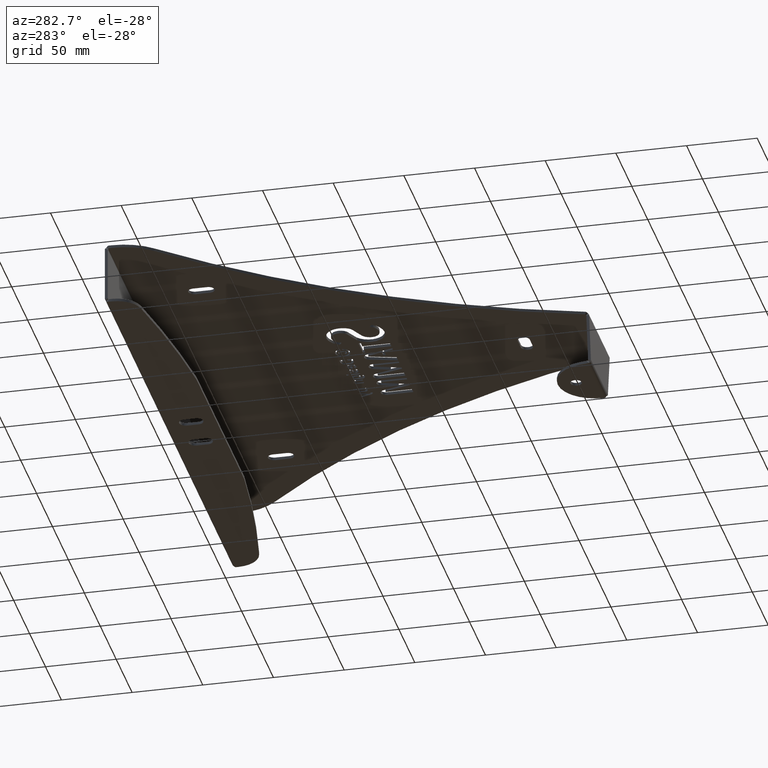
[diagram: clean part render]
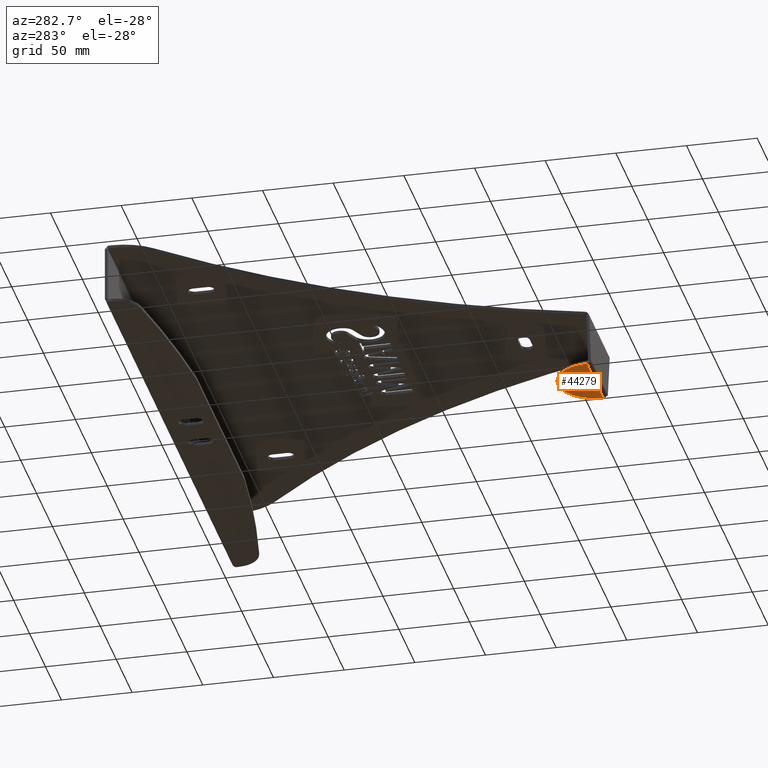
[diagram: same view with one face highlighted and labeled with its STEP entity id]
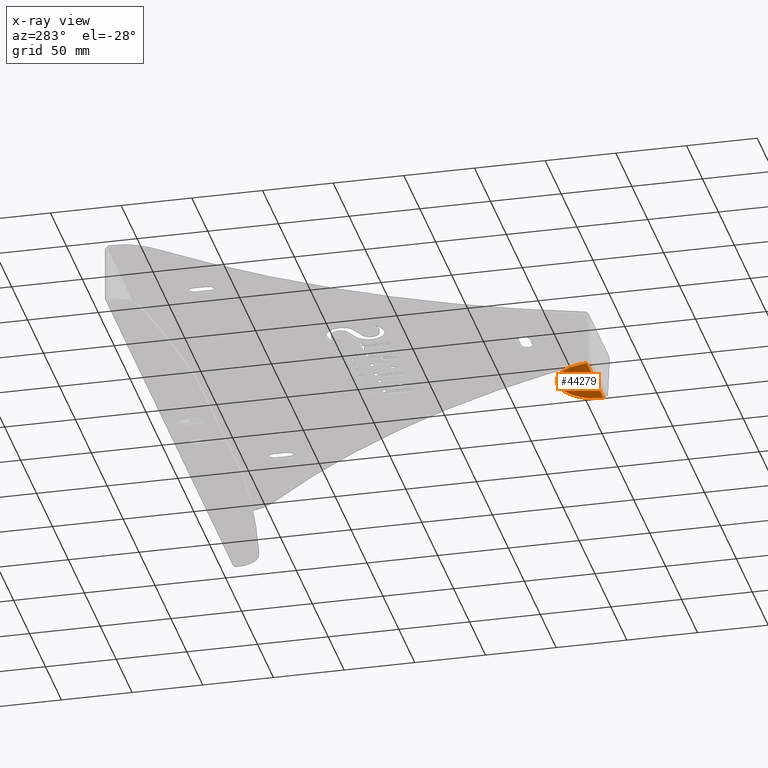
[diagram: x-ray of the same camera — body ghosted, the highlighted face saturated]
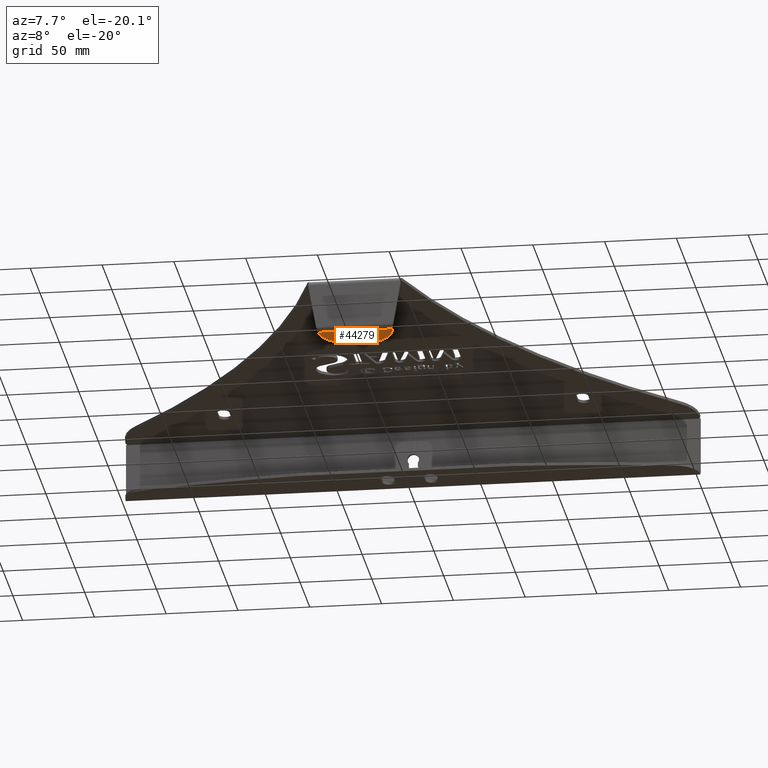
[diagram: same view with one face highlighted and labeled with its STEP entity id]
A machine part, auxiliary view. The second image highlights one B-rep face of the part: STEP entity #44279.
The next image is the same camera in x-ray: the body ghosted, the highlighted face saturated — about 0% of this face is hidden behind the body in this view.
A second angle (auxiliary view) of the same face is appended — the face is thin or edge-on in the first view.
In plain terms, the highlighted planar face has unit normal (-0, 0, -1).
Its self-contained STEP definition (entity closure, byte-faithful):
#639 = CARTESIAN_POINT ( 'NONE',  ( 3.999999996994211937, -142.9914706344111437, -34.86920354350045415 ) ) ;
#783 = DIRECTION ( 'NONE',  ( 1.000000000000000000, 0.000000000000000000, 0.000000000000000000 ) ) ;
#793 = DIRECTION ( 'NONE',  ( -2.587861065897175959E-16, 6.982962677686266711E-15, -1.000000000000000000 ) ) ;
#1929 = VECTOR ( 'NONE', #4955, 1000.000000000000227 ) ;
#1982 = VERTEX_POINT ( 'NONE', #2547 ) ;
#2547 = CARTESIAN_POINT ( 'NONE',  ( 25.33904903930744723, -151.2534573376774176, -34.86920354350051099 ) ) ;
#4955 = DIRECTION ( 'NONE',  ( 0.1736481776669102361, -0.9848077530122115730, -6.921813519795168040E-15 ) ) ;
#5039 = CARTESIAN_POINT ( 'NONE',  ( -25.33904903930734420, -151.2534573376774176, -34.86920354350051099 ) ) ;
#5463 = CARTESIAN_POINT ( 'NONE',  ( -5.109132446966889583E-14, -350.0972194677042353, -34.86920354350189655 ) ) ;
#8363 = AXIS2_PLACEMENT_3D ( 'NONE', #5463, #793, #37837 ) ;
#8487 = CIRCLE ( 'NONE', #46487, 25.72994471439055886 ) ;
#9344 = DIRECTION ( 'NONE',  ( -0.1736481776669107080, -0.9848077530122114620, -6.831938048165527526E-15 ) ) ;
#9576 = VERTEX_POINT ( 'NONE', #639 ) ;
#11694 = EDGE_CURVE ( 'NONE', #45449, #32678, #19826, .T. ) ;
#12770 = CARTESIAN_POINT ( 'NONE',  ( -58.57926923119828899, -339.7681137920599781, -34.86920354350181128 ) ) ;
#14715 = AXIS2_PLACEMENT_3D ( 'NONE', #37137, #36967, #783 ) ;
#16321 = ORIENTED_EDGE ( 'NONE', *, *, #37378, .T. ) ;
#16360 = CARTESIAN_POINT ( 'NONE',  ( -9.839152621147916142E-16, -156.4724153085119838, -34.86920354350056783 ) ) ;
#16812 = CIRCLE ( 'NONE', #14715, 3.999999996994157314 ) ;
#18986 = EDGE_LOOP ( 'NONE', ( #28300, #40208, #52377, #16321 ) ) ;
#19826 = LINE ( 'NONE', #16360, #39658 ) ;
#20583 = CARTESIAN_POINT ( 'NONE',  ( -26.25929214074886886, -156.4724153085119838, -34.86920354350056783 ) ) ;
#21063 = CARTESIAN_POINT ( 'NONE',  ( 26.25929214074894347, -156.4724153085119553, -34.86920354350053231 ) ) ;
#23703 = LINE ( 'NONE', #12770, #33310 ) ;
#26312 = CARTESIAN_POINT ( 'NONE',  ( -3.985939912347996616E-15, -155.7214153488017416, -34.86920354350053941 ) ) ;
#26504 = DIRECTION ( 'NONE',  ( -2.587861065897175959E-16, 6.982962677686266711E-15, -1.000000000000000000 ) ) ;
#26685 = DIRECTION ( 'NONE',  ( 1.000000000000000000, 0.000000000000000000, -2.696816484034790176E-16 ) ) ;
#27101 = VERTEX_POINT ( 'NONE', #5039 ) ;
#28300 = ORIENTED_EDGE ( 'NONE', *, *, #53091, .T. ) ;
#29294 = EDGE_CURVE ( 'NONE', #27101, #32678, #23703, .T. ) ;
#29447 = CARTESIAN_POINT ( 'NONE',  ( 58.57926923119828899, -339.7681137920599781, -34.86920354350186813 ) ) ;
#32519 = EDGE_LOOP ( 'NONE', ( #38676 ) ) ;
#32678 = VERTEX_POINT ( 'NONE', #20583 ) ;
#33310 = VECTOR ( 'NONE', #9344, 1000.000000000000114 ) ;
#34607 = LINE ( 'NONE', #29447, #1929 ) ;
#36967 = DIRECTION ( 'NONE',  ( -2.587861065897175959E-16, 6.982962677686266711E-15, -1.000000000000000000 ) ) ;
#37137 = CARTESIAN_POINT ( 'NONE',  ( 5.482308524088033727E-14, -142.9914706344111437, -34.86920354350045415 ) ) ;
#37378 = EDGE_CURVE ( 'NONE', #27101, #1982, #8487, .T. ) ;
#37837 = DIRECTION ( 'NONE',  ( 1.000000000000000000, -2.587861065897167084E-16, -2.587861065897194201E-16 ) ) ;
#38676 = ORIENTED_EDGE ( 'NONE', *, *, #50897, .F. ) ;
#39658 = VECTOR ( 'NONE', #44966, 1000.000000000000000 ) ;
#40208 = ORIENTED_EDGE ( 'NONE', *, *, #11694, .T. ) ;
#44279 = ADVANCED_FACE ( 'NONE', ( #47578, #51455 ), #45700, .T. ) ;
#44966 = DIRECTION ( 'NONE',  ( -1.000000000000000000, 2.587861065897167084E-16, 2.587861065897194201E-16 ) ) ;
#45449 = VERTEX_POINT ( 'NONE', #21063 ) ;
#45700 = PLANE ( 'NONE',  #8363 ) ;
#46487 = AXIS2_PLACEMENT_3D ( 'NONE', #26312, #26504, #26685 ) ;
#47578 = FACE_BOUND ( 'NONE', #32519, .T. ) ;
#50897 = EDGE_CURVE ( 'NONE', #9576, #9576, #16812, .T. ) ;
#51455 = FACE_OUTER_BOUND ( 'NONE', #18986, .T. ) ;
#52377 = ORIENTED_EDGE ( 'NONE', *, *, #29294, .F. ) ;
#53091 = EDGE_CURVE ( 'NONE', #1982, #45449, #34607, .T. ) ;